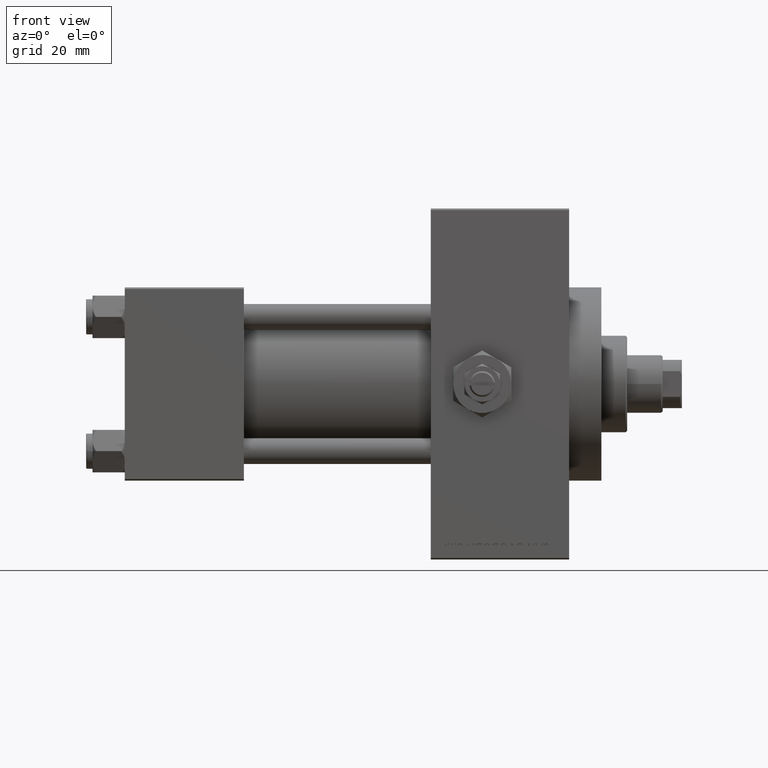
[diagram: clean part render]
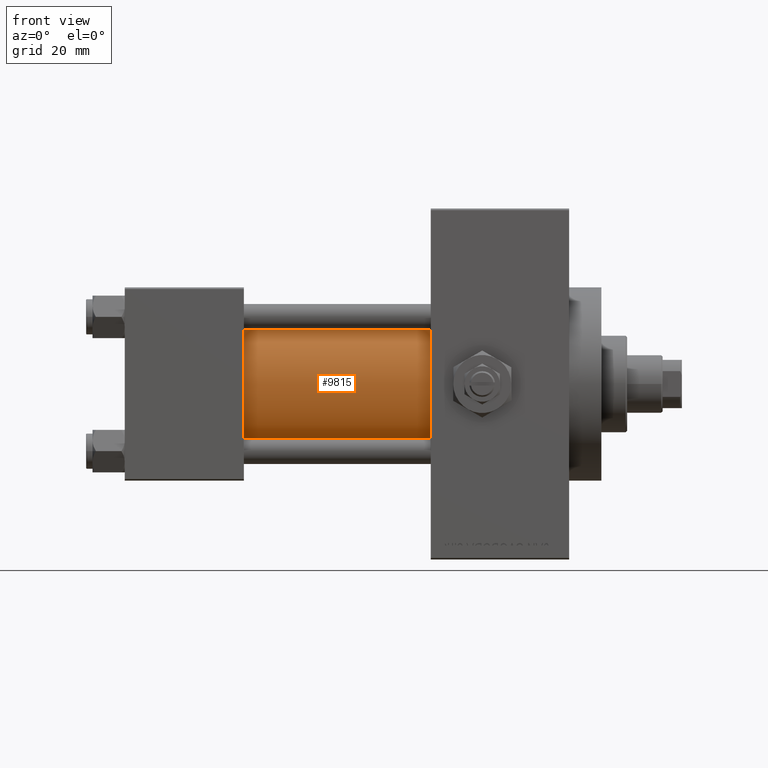
[diagram: same view with one face highlighted and labeled with its STEP entity id]
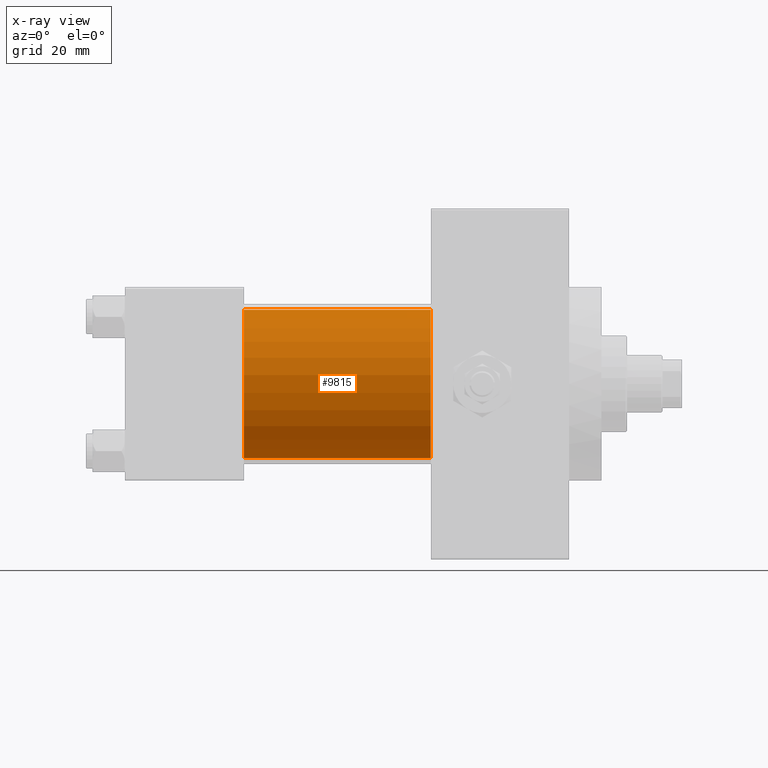
[diagram: x-ray of the same camera — body ghosted, the highlighted face saturated]
A machine part, front view. The second image highlights one B-rep face of the part: STEP entity #9815.
The next image is the same camera in x-ray: the body ghosted, the highlighted face saturated — about 0% of this face is hidden behind the body in this view.
In plain terms, the highlighted cylindrical surface (partial cylindrical patch) has radius 23 mm, axis along (-1, -0, -0).
Its self-contained STEP definition (entity closure, byte-faithful):
#711 = VERTEX_POINT ( 'NONE', #38872 ) ;
#2525 = CARTESIAN_POINT ( 'NONE',  ( 95.00000000000000000, 2.146024240737012665E-16, -23.00000000000000000 ) ) ;
#4333 = AXIS2_PLACEMENT_3D ( 'NONE', #19286, #4751, #27175 ) ;
#4751 = DIRECTION ( 'NONE',  ( -1.000000000000000000, -0.000000000000000000, -0.000000000000000000 ) ) ;
#7823 = ORIENTED_EDGE ( 'NONE', *, *, #11567, .T. ) ;
#8289 = ORIENTED_EDGE ( 'NONE', *, *, #29280, .T. ) ;
#9815 = ADVANCED_FACE ( 'NONE', ( #12389 ), #38486, .T. ) ;
#10404 = VERTEX_POINT ( 'NONE', #18314 ) ;
#11567 = EDGE_CURVE ( 'NONE', #711, #10404, #37296, .T. ) ;
#11975 = EDGE_LOOP ( 'NONE', ( #46350, #27717, #7823, #8289 ) ) ;
#12389 = FACE_OUTER_BOUND ( 'NONE', #11975, .T. ) ;
#14391 = DIRECTION ( 'NONE',  ( -1.000000000000000000, -0.000000000000000000, -0.000000000000000000 ) ) ;
#15257 = CARTESIAN_POINT ( 'NONE',  ( 95.00000000000000000, 2.146024240737012665E-16, -23.00000000000000000 ) ) ;
#15571 = AXIS2_PLACEMENT_3D ( 'NONE', #44779, #29270, #44054 ) ;
#15854 = VERTEX_POINT ( 'NONE', #15257 ) ;
#18314 = CARTESIAN_POINT ( 'NONE',  ( 37.00000000000000000, -2.602085213965210642E-15, 23.00000000000000000 ) ) ;
#19286 = CARTESIAN_POINT ( 'NONE',  ( 95.00000000000000000, -2.602085213965210642E-15, 0.000000000000000000 ) ) ;
#21246 = LINE ( 'NONE', #2525, #40395 ) ;
#21647 = CARTESIAN_POINT ( 'NONE',  ( 37.00000000000000000, 2.146024240737012665E-16, -23.00000000000000000 ) ) ;
#22174 = CARTESIAN_POINT ( 'NONE',  ( 37.00000000000000000, -2.602085213965210642E-15, 0.000000000000000000 ) ) ;
#23413 = AXIS2_PLACEMENT_3D ( 'NONE', #22174, #44832, #40388 ) ;
#26570 = CIRCLE ( 'NONE', #15571, 23.00000000000000000 ) ;
#27175 = DIRECTION ( 'NONE',  ( 0.000000000000000000, 0.000000000000000000, 1.000000000000000000 ) ) ;
#27717 = ORIENTED_EDGE ( 'NONE', *, *, #30577, .F. ) ;
#29270 = DIRECTION ( 'NONE',  ( 1.000000000000000000, 0.000000000000000000, 0.000000000000000000 ) ) ;
#29280 = EDGE_CURVE ( 'NONE', #10404, #30705, #39109, .T. ) ;
#30577 = EDGE_CURVE ( 'NONE', #711, #15854, #26570, .T. ) ;
#30705 = VERTEX_POINT ( 'NONE', #21647 ) ;
#32567 = DIRECTION ( 'NONE',  ( -1.000000000000000000, -0.000000000000000000, -0.000000000000000000 ) ) ;
#33124 = CARTESIAN_POINT ( 'NONE',  ( 95.00000000000000000, -2.602085213965210642E-15, 23.00000000000000000 ) ) ;
#37296 = LINE ( 'NONE', #33124, #47597 ) ;
#38486 = CYLINDRICAL_SURFACE ( 'NONE', #4333, 23.00000000000000000 ) ;
#38872 = CARTESIAN_POINT ( 'NONE',  ( 95.00000000000000000, -2.602085213965210642E-15, 23.00000000000000000 ) ) ;
#39109 = CIRCLE ( 'NONE', #23413, 23.00000000000000000 ) ;
#40388 = DIRECTION ( 'NONE',  ( 0.000000000000000000, 0.000000000000000000, 1.000000000000000000 ) ) ;
#40395 = VECTOR ( 'NONE', #32567, 1000.000000000000000 ) ;
#42384 = EDGE_CURVE ( 'NONE', #15854, #30705, #21246, .T. ) ;
#44054 = DIRECTION ( 'NONE',  ( 0.000000000000000000, 0.000000000000000000, -1.000000000000000000 ) ) ;
#44779 = CARTESIAN_POINT ( 'NONE',  ( 95.00000000000000000, -2.602085213965210642E-15, 0.000000000000000000 ) ) ;
#44832 = DIRECTION ( 'NONE',  ( 1.000000000000000000, -0.000000000000000000, 0.000000000000000000 ) ) ;
#46350 = ORIENTED_EDGE ( 'NONE', *, *, #42384, .F. ) ;
#47597 = VECTOR ( 'NONE', #14391, 1000.000000000000000 ) ;